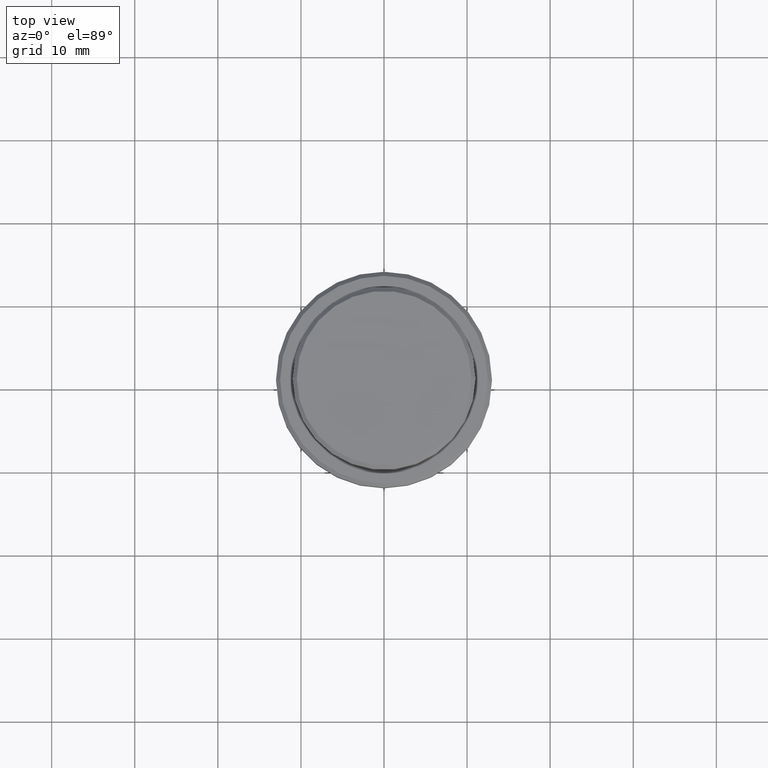
[diagram: clean part render]
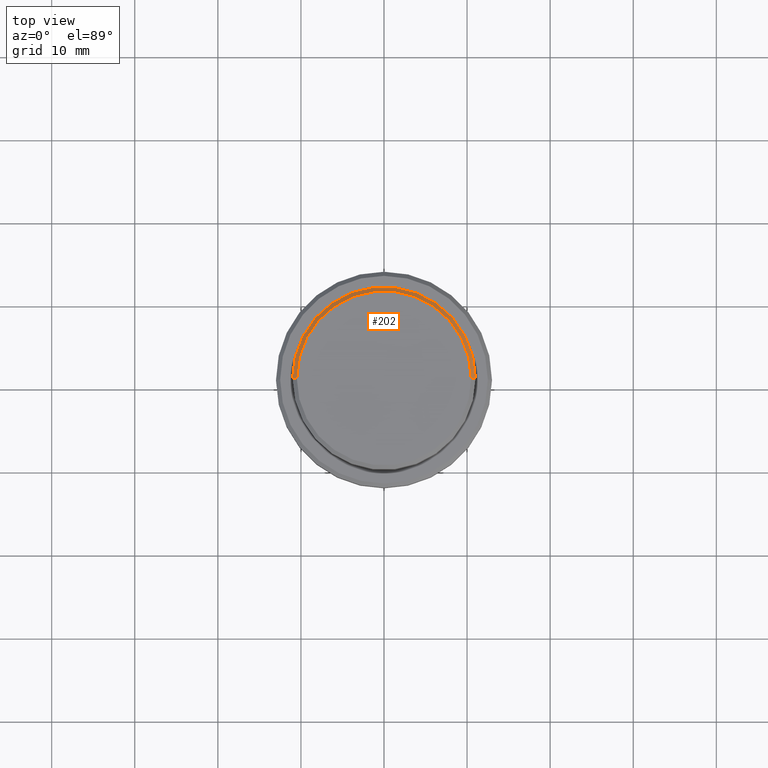
[diagram: same view with one face highlighted and labeled with its STEP entity id]
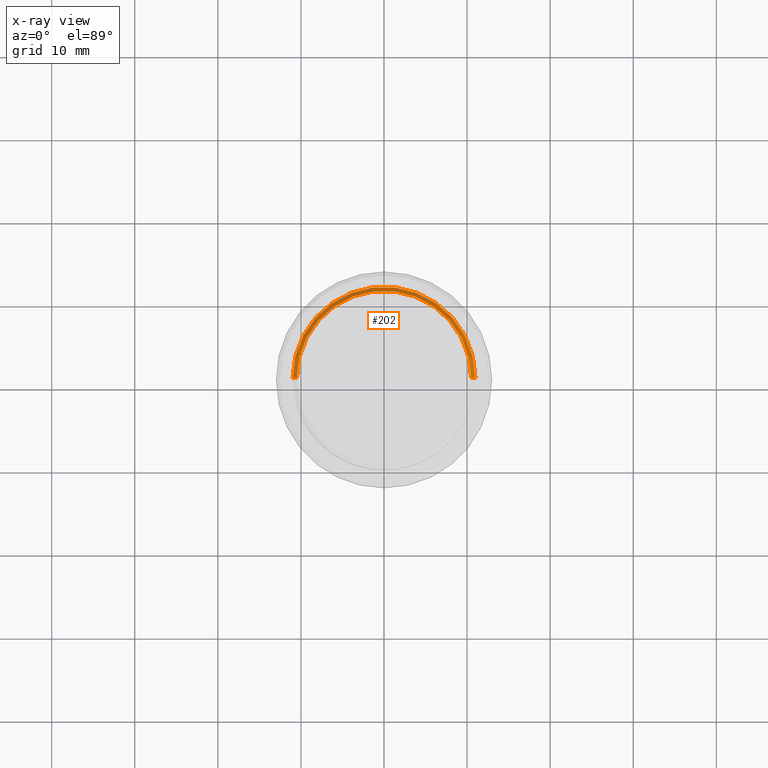
[diagram: x-ray of the same camera — body ghosted, the highlighted face saturated]
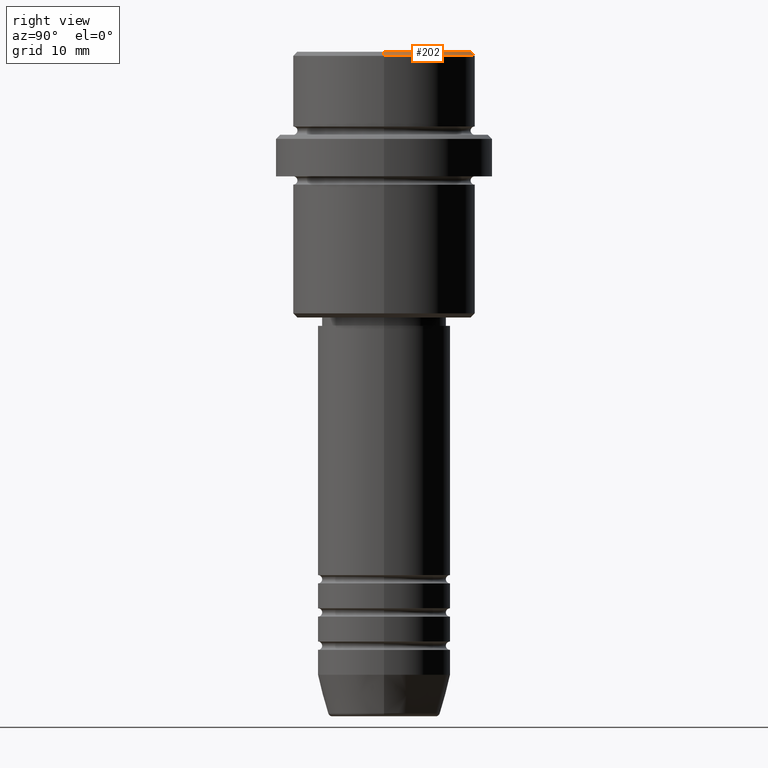
[diagram: same view with one face highlighted and labeled with its STEP entity id]
A machine part, top view. The second image highlights one B-rep face of the part: STEP entity #202.
The next image is the same camera in x-ray: the body ghosted, the highlighted face saturated — about 0% of this face is hidden behind the body in this view.
A second angle (right view) of the same face is appended — the face is thin or edge-on in the first view.
In plain terms, the highlighted conical surface has half-angle 45 deg.
Its self-contained STEP definition (entity closure, byte-faithful):
#3 = CARTESIAN_POINT ( 'NONE',  ( 10.50000000000000888, 1.285879139104722014E-15, 0.000000000000000000 ) ) ;
#16 = LINE ( 'NONE', #1349, #286 ) ;
#59 = VECTOR ( 'NONE', #218, 1000.000000000000114 ) ;
#72 = CARTESIAN_POINT ( 'NONE',  ( 10.50000000000000888, 1.316495309083404420E-15, 0.000000000000000000 ) ) ;
#197 = CIRCLE ( 'NONE', #425, 10.50000000000000888 ) ;
#202 = ADVANCED_FACE ( 'NONE', ( #370 ), #1308, .T. ) ;
#205 = LINE ( 'NONE', #3, #59 ) ;
#218 = DIRECTION ( 'NONE',  ( 0.7071067811865402453, 8.659560562354845344E-17, -0.7071067811865549002 ) ) ;
#230 = CARTESIAN_POINT ( 'NONE',  ( -10.99999999999998757, 1.347111479062086827E-15, -0.4999999999999882871 ) ) ;
#259 = ORIENTED_EDGE ( 'NONE', *, *, #644, .F. ) ;
#286 = VECTOR ( 'NONE', #452, 1000.000000000000114 ) ;
#301 = VERTEX_POINT ( 'NONE', #1079 ) ;
#370 = FACE_OUTER_BOUND ( 'NONE', #744, .T. ) ;
#425 = AXIS2_PLACEMENT_3D ( 'NONE', #823, #1046, #500 ) ;
#452 = DIRECTION ( 'NONE',  ( -0.7071067811865402453, 0.000000000000000000, -0.7071067811865549002 ) ) ;
#474 = DIRECTION ( 'NONE',  ( 0.000000000000000000, 0.000000000000000000, -1.000000000000000000 ) ) ;
#500 = DIRECTION ( 'NONE',  ( 1.000000000000000000, 0.000000000000000000, 0.000000000000000000 ) ) ;
#550 = EDGE_CURVE ( 'NONE', #1413, #1051, #16, .T. ) ;
#637 = VERTEX_POINT ( 'NONE', #72 ) ;
#644 = EDGE_CURVE ( 'NONE', #637, #1413, #197, .T. ) ;
#744 = EDGE_LOOP ( 'NONE', ( #259, #1113, #1296, #1260 ) ) ;
#780 = AXIS2_PLACEMENT_3D ( 'NONE', #1228, #474, #1136 ) ;
#814 = DIRECTION ( 'NONE',  ( 1.000000000000000000, 0.000000000000000000, 0.000000000000000000 ) ) ;
#823 = CARTESIAN_POINT ( 'NONE',  ( 0.000000000000000000, 0.000000000000000000, 0.000000000000000000 ) ) ;
#889 = EDGE_CURVE ( 'NONE', #1051, #301, #965, .T. ) ;
#965 = CIRCLE ( 'NONE', #1331, 10.99999999999998757 ) ;
#1046 = DIRECTION ( 'NONE',  ( -0.000000000000000000, -0.000000000000000000, 1.000000000000000000 ) ) ;
#1051 = VERTEX_POINT ( 'NONE', #230 ) ;
#1079 = CARTESIAN_POINT ( 'NONE',  ( 10.99999999999998757, 0.000000000000000000, -0.4999999999999882871 ) ) ;
#1113 = ORIENTED_EDGE ( 'NONE', *, *, #1387, .T. ) ;
#1136 = DIRECTION ( 'NONE',  ( -1.000000000000000000, 0.000000000000000000, 0.000000000000000000 ) ) ;
#1228 = CARTESIAN_POINT ( 'NONE',  ( 0.000000000000000000, 0.000000000000000000, 0.000000000000000000 ) ) ;
#1234 = CARTESIAN_POINT ( 'NONE',  ( -10.50000000000000888, 0.000000000000000000, 0.000000000000000000 ) ) ;
#1252 = DIRECTION ( 'NONE',  ( 0.000000000000000000, 0.000000000000000000, -1.000000000000000000 ) ) ;
#1260 = ORIENTED_EDGE ( 'NONE', *, *, #550, .F. ) ;
#1296 = ORIENTED_EDGE ( 'NONE', *, *, #889, .F. ) ;
#1308 = CONICAL_SURFACE ( 'NONE', #780, 10.50000000000000888, 0.7853981633974380649 ) ;
#1331 = AXIS2_PLACEMENT_3D ( 'NONE', #1362, #1252, #814 ) ;
#1349 = CARTESIAN_POINT ( 'NONE',  ( -10.50000000000000888, 0.000000000000000000, 0.000000000000000000 ) ) ;
#1362 = CARTESIAN_POINT ( 'NONE',  ( 0.000000000000000000, 0.000000000000000000, -0.4999999999999882871 ) ) ;
#1387 = EDGE_CURVE ( 'NONE', #637, #301, #205, .T. ) ;
#1413 = VERTEX_POINT ( 'NONE', #1234 ) ;